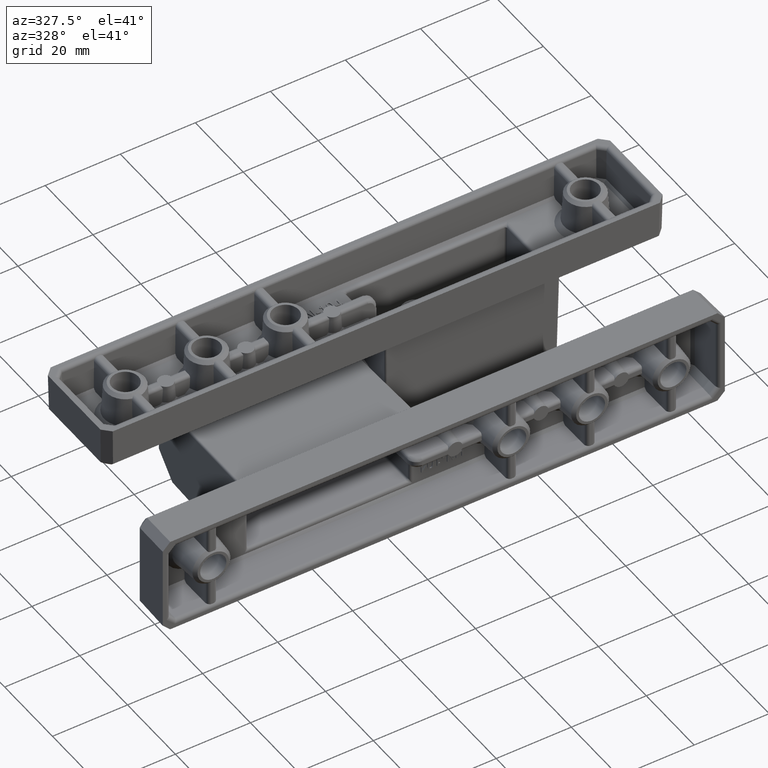
[diagram: clean part render]
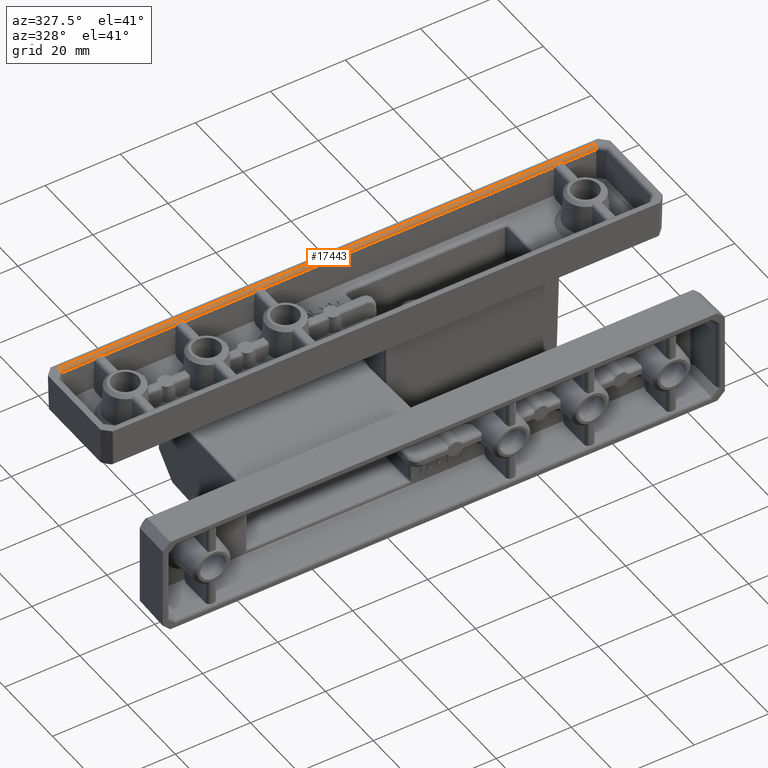
[diagram: same view with one face highlighted and labeled with its STEP entity id]
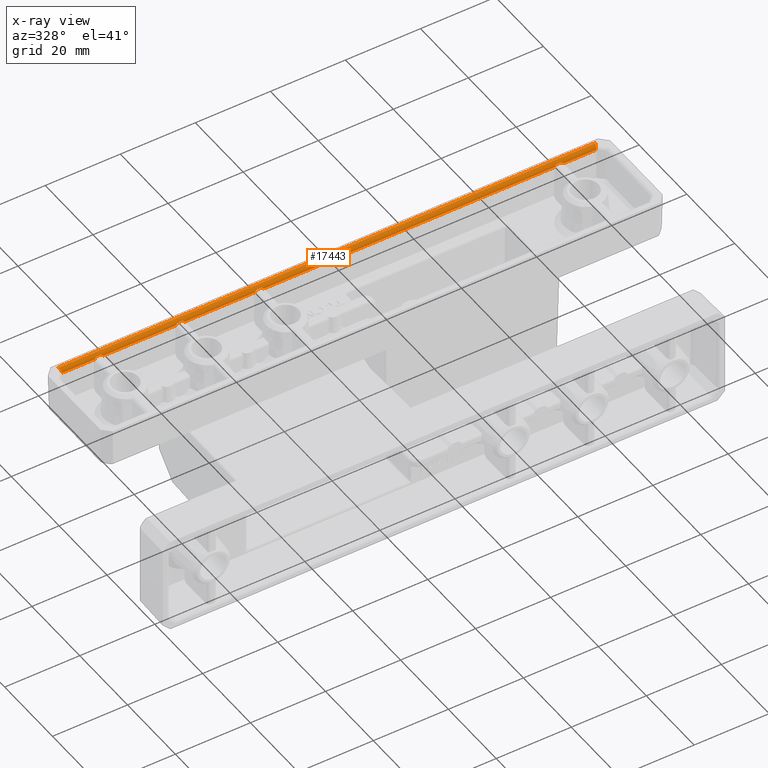
[diagram: x-ray of the same camera — body ghosted, the highlighted face saturated]
A machine part, auxiliary view. The second image highlights one B-rep face of the part: STEP entity #17443.
The next image is the same camera in x-ray: the body ghosted, the highlighted face saturated — about 0% of this face is hidden behind the body in this view.
In plain terms, the highlighted cylindrical surface (edge-blend (fillet) strip) has radius 1 mm, axis along (1, -0, 0).
Its self-contained STEP definition (entity closure, byte-faithful):
#401=ELLIPSE('',#18356,1.08239220029239,1.);
#407=ELLIPSE('',#18377,1.08239220029239,1.);
#988=LINE('',#25595,#2386);
#990=LINE('',#25612,#2388);
#1028=LINE('',#25742,#2426);
#1040=LINE('',#25822,#2438);
#1042=LINE('',#25830,#2440);
#1043=LINE('',#25841,#2441);
#1044=LINE('',#25852,#2442);
#1045=LINE('',#25863,#2443);
#1046=LINE('',#25874,#2444);
#1047=LINE('',#25885,#2445);
#2386=VECTOR('',#20158,8.71718570116231);
#2388=VECTOR('',#20166,0.641455298548195);
#2426=VECTOR('',#20256,143.211255777855);
#2438=VECTOR('',#20276,77.5513610614597);
#2440=VECTOR('',#20284,8.717185701165);
#2441=VECTOR('',#20285,0.641455298545992);
#2442=VECTOR('',#20286,19.35136106146);
#2443=VECTOR('',#20287,0.641455298547008);
#2444=VECTOR('',#20288,18.6513610614595);
#2445=VECTOR('',#20289,0.641455298547697);
#3533=B_SPLINE_CURVE_WITH_KNOTS('',3,(#25599,#25600,#25601,#25602,#25603,
#25604,#25605,#25606,#25607,#25608),.UNSPECIFIED.,.F.,.F.,(4,2,2,2,4),(0.764332314445774,
0.790475346023868,0.816618377601962,0.842761409180056,0.866469034899585),
 .UNSPECIFIED.);
#3535=B_SPLINE_CURVE_WITH_KNOTS('',3,(#25672,#25673,#25674,#25675,#25676,
#25677,#25678,#25679,#25680,#25681),.UNSPECIFIED.,.F.,.F.,(4,2,2,2,4),(0.155449449140797,
0.178134458193319,0.203237887448036,0.228301233522717,0.253364579597398),
 .UNSPECIFIED.);
#3543=B_SPLINE_CURVE_WITH_KNOTS('',3,(#25832,#25833,#25834,#25835,#25836,
#25837,#25838,#25839),.UNSPECIFIED.,.F.,.F.,(4,2,2,4),(-0.0984011371208207,
-0.0701003423844554,-0.0350501711922277,0.),.UNSPECIFIED.);
#3544=B_SPLINE_CURVE_WITH_KNOTS('',3,(#25843,#25844,#25845,#25846,#25847,
#25848,#25849,#25850),.UNSPECIFIED.,.F.,.F.,(4,2,2,4),(-1.02193546969693,
-0.986885298504637,-0.951835127312345,-0.923534332578013),.UNSPECIFIED.);
#3545=B_SPLINE_CURVE_WITH_KNOTS('',3,(#25854,#25855,#25856,#25857,#25858,
#25859,#25860,#25861),.UNSPECIFIED.,.F.,.F.,(4,2,2,4),(-0.0984011371224013,
-0.0701003423844554,-0.0350501711922277,0.),.UNSPECIFIED.);
#3546=B_SPLINE_CURVE_WITH_KNOTS('',3,(#25865,#25866,#25867,#25868,#25869,
#25870,#25871,#25872),.UNSPECIFIED.,.F.,.F.,(4,2,2,4),(-1.02193546969681,
-0.986885298504562,-0.951835127312313,-0.923534332578006),.UNSPECIFIED.);
#3547=B_SPLINE_CURVE_WITH_KNOTS('',3,(#25876,#25877,#25878,#25879,#25880,
#25881,#25882,#25883),.UNSPECIFIED.,.F.,.F.,(4,2,2,4),(-0.0984011371207961,
-0.0701003423844554,-0.0350501711922277,0.),.UNSPECIFIED.);
#3548=B_SPLINE_CURVE_WITH_KNOTS('',3,(#25886,#25887,#25888,#25889,#25890,
#25891,#25892,#25893),.UNSPECIFIED.,.F.,.F.,(4,2,2,4),(-1.03041262100396,
-0.995362449811717,-0.960312278619471,-0.932011483885176),.UNSPECIFIED.);
#4370=CYLINDRICAL_SURFACE('',#18376,1.);
#4885=FACE_OUTER_BOUND('',#5852,.T.);
#5852=EDGE_LOOP('',(#12349,#12350,#12351,#12352,#12353,#12354,#12355,#12356,
#12357,#12358,#12359,#12360,#12361,#12362,#12363,#12364,#12365,#12366,#12367,
#12368));
#7300=VERTEX_POINT('',#25499);
#7317=VERTEX_POINT('',#25594);
#7318=VERTEX_POINT('',#25598);
#7319=VERTEX_POINT('',#25611);
#7328=VERTEX_POINT('',#25652);
#7334=VERTEX_POINT('',#25669);
#7349=VERTEX_POINT('',#25740);
#7365=VERTEX_POINT('',#25821);
#7367=VERTEX_POINT('',#25827);
#7368=VERTEX_POINT('',#25829);
#7369=VERTEX_POINT('',#25831);
#7370=VERTEX_POINT('',#25840);
#7371=VERTEX_POINT('',#25842);
#7372=VERTEX_POINT('',#25851);
#7373=VERTEX_POINT('',#25853);
#7374=VERTEX_POINT('',#25862);
#7375=VERTEX_POINT('',#25864);
#7376=VERTEX_POINT('',#25873);
#7377=VERTEX_POINT('',#25875);
#7378=VERTEX_POINT('',#25884);
#9180=EDGE_CURVE('',#7300,#7317,#988,.T.);
#9182=EDGE_CURVE('',#7318,#7317,#3533,.T.);
#9184=EDGE_CURVE('',#7318,#7319,#990,.T.);
#9201=EDGE_CURVE('',#7300,#7328,#401,.T.);
#9210=EDGE_CURVE('',#7334,#7319,#3535,.T.);
#9235=EDGE_CURVE('',#7349,#7328,#1028,.T.);
#9254=EDGE_CURVE('',#7334,#7365,#1040,.T.);
#9257=EDGE_CURVE('',#7367,#7349,#407,.T.);
#9258=EDGE_CURVE('',#7368,#7367,#1042,.T.);
#9259=EDGE_CURVE('',#7368,#7369,#3543,.T.);
#9260=EDGE_CURVE('',#7370,#7369,#1043,.T.);
#9261=EDGE_CURVE('',#7370,#7371,#3544,.T.);
#9262=EDGE_CURVE('',#7372,#7371,#1044,.T.);
#9263=EDGE_CURVE('',#7372,#7373,#3545,.T.);
#9264=EDGE_CURVE('',#7373,#7374,#1045,.T.);
#9265=EDGE_CURVE('',#7374,#7375,#3546,.T.);
#9266=EDGE_CURVE('',#7376,#7375,#1046,.T.);
#9267=EDGE_CURVE('',#7376,#7377,#3547,.T.);
#9268=EDGE_CURVE('',#7378,#7377,#1047,.T.);
#9269=EDGE_CURVE('',#7378,#7365,#3548,.T.);
#12349=ORIENTED_EDGE('',*,*,#9235,.F.);
#12350=ORIENTED_EDGE('',*,*,#9257,.F.);
#12351=ORIENTED_EDGE('',*,*,#9258,.F.);
#12352=ORIENTED_EDGE('',*,*,#9259,.T.);
#12353=ORIENTED_EDGE('',*,*,#9260,.F.);
#12354=ORIENTED_EDGE('',*,*,#9261,.T.);
#12355=ORIENTED_EDGE('',*,*,#9262,.F.);
#12356=ORIENTED_EDGE('',*,*,#9263,.T.);
#12357=ORIENTED_EDGE('',*,*,#9264,.T.);
#12358=ORIENTED_EDGE('',*,*,#9265,.T.);
#12359=ORIENTED_EDGE('',*,*,#9266,.F.);
#12360=ORIENTED_EDGE('',*,*,#9267,.T.);
#12361=ORIENTED_EDGE('',*,*,#9268,.F.);
#12362=ORIENTED_EDGE('',*,*,#9269,.T.);
#12363=ORIENTED_EDGE('',*,*,#9254,.F.);
#12364=ORIENTED_EDGE('',*,*,#9210,.T.);
#12365=ORIENTED_EDGE('',*,*,#9184,.F.);
#12366=ORIENTED_EDGE('',*,*,#9182,.T.);
#12367=ORIENTED_EDGE('',*,*,#9180,.F.);
#12368=ORIENTED_EDGE('',*,*,#9201,.T.);
#17443=ADVANCED_FACE('',(#4885),#4370,.T.);
#18356=AXIS2_PLACEMENT_3D('',#25654,#20200,#20201);
#18376=AXIS2_PLACEMENT_3D('',#25826,#20280,#20281);
#18377=AXIS2_PLACEMENT_3D('',#25828,#20282,#20283);
#20158=DIRECTION('',(-1.,7.97924070761804E-16,4.45187574402755E-37));
#20166=DIRECTION('',(-1.,7.97924070761804E-16,0.));
#20200=DIRECTION('center_axis',(-0.923879532511287,0.38268343236509,0.));
#20201=DIRECTION('ref_axis',(0.38268343236509,0.923879532511287,0.));
#20256=DIRECTION('',(1.,-7.97924070761804E-16,0.));
#20276=DIRECTION('',(-1.,7.97924070761804E-16,4.45187574402755E-37));
#20280=DIRECTION('center_axis',(1.,-7.97924070761804E-16,0.));
#20281=DIRECTION('ref_axis',(7.97924070761804E-16,1.,0.));
#20282=DIRECTION('center_axis',(-0.923879532511286,-0.382683432365091,0.));
#20283=DIRECTION('ref_axis',(-0.382683432365091,0.923879532511286,0.));
#20284=DIRECTION('',(-1.,7.97924070761804E-16,4.45187574402755E-37));
#20285=DIRECTION('',(-1.,7.97924070761804E-16,0.));
#20286=DIRECTION('',(-1.,7.97924070761804E-16,4.45187574402755E-37));
#20287=DIRECTION('',(1.,-7.97924070761804E-16,0.));
#20288=DIRECTION('',(-1.,7.97924070761804E-16,4.45187574402755E-37));
#20289=DIRECTION('',(-1.,7.97924070761804E-16,0.));
#25499=CARTESIAN_POINT('',(-1.70849482956649,-2.02050833274895,-0.979057580116643));
#25594=CARTESIAN_POINT('',(-10.4256805307288,-2.02050833274894,-0.979057580116643));
#25595=CARTESIAN_POINT('',(-72.9000000000001,-2.02050833274889,-0.979057580116643));
#25598=CARTESIAN_POINT('',(-11.279272350726,-1.88675305305853,-0.5));
#25599=CARTESIAN_POINT('Ctrl Pts',(-11.279272350726,-1.88675305305853,-0.5));
#25600=CARTESIAN_POINT('Ctrl Pts',(-11.1921289121324,-1.88675305305853,
-0.500000000000001));
#25601=CARTESIAN_POINT('Ctrl Pts',(-11.1046193338395,-1.89368383264875,
-0.511504485139867));
#25602=CARTESIAN_POINT('Ctrl Pts',(-10.9357460735027,-1.91749570637129,
-0.556788950900922));
#25603=CARTESIAN_POINT('Ctrl Pts',(-10.8543688204824,-1.93427382591403,
-0.590572410483404));
#25604=CARTESIAN_POINT('Ctrl Pts',(-10.7033941456679,-1.96856873919858,
-0.677828352310977));
#25605=CARTESIAN_POINT('Ctrl Pts',(-10.633642837835,-1.98604383784631,-0.731384181546958));
#25606=CARTESIAN_POINT('Ctrl Pts',(-10.5160970832245,-2.01090428250437,
-0.848990589089613));
#25607=CARTESIAN_POINT('Ctrl Pts',(-10.4668542248484,-2.01909513649875,
-0.911592295743318));
#25608=CARTESIAN_POINT('Ctrl Pts',(-10.4256805307288,-2.02050833274894,
-0.97905758011666));
#25611=CARTESIAN_POINT('',(-11.9207276492742,-1.88675305305853,-0.5));
#25612=CARTESIAN_POINT('',(-72.9000000000001,-1.88675305305848,-0.5));
#25652=CARTESIAN_POINT('',(-1.29437211107256,-1.0207276492741,0.));
#25654=CARTESIAN_POINT('Origin',(-1.29437211107255,-1.02072764927411,-1.));
#25669=CARTESIAN_POINT('',(-12.7743194692693,-2.02050833274888,-0.979057580143048));
#25672=CARTESIAN_POINT('Ctrl Pts',(-12.7743194692825,-2.02050833274932,
-0.979057580134959));
#25673=CARTESIAN_POINT('Ctrl Pts',(-12.7343793503163,-2.019137476247,-0.913613574157217));
#25674=CARTESIAN_POINT('Ctrl Pts',(-12.6841218300923,-2.01098523146841,
-0.849039104469109));
#25675=CARTESIAN_POINT('Ctrl Pts',(-12.5636850443884,-1.98543952031087,
-0.728902756091974));
#25676=CARTESIAN_POINT('Ctrl Pts',(-12.4918330456697,-1.96747935972335,
-0.675027315965362));
#25677=CARTESIAN_POINT('Ctrl Pts',(-12.3497357883792,-1.93521143905039,
-0.592987426217546));
#25678=CARTESIAN_POINT('Ctrl Pts',(-12.2671540195595,-1.91796503195252,
-0.557670236125325));
#25679=CARTESIAN_POINT('Ctrl Pts',(-12.0944618088979,-1.89349449805698,
-0.511155762619152));
#25680=CARTESIAN_POINT('Ctrl Pts',(-12.0042721361898,-1.88675305305853,
-0.5));
#25681=CARTESIAN_POINT('Ctrl Pts',(-11.9207276492742,-1.88675305305853,
-0.5));
#25740=CARTESIAN_POINT('',(-144.505627888928,-1.02072764927399,0.));
#25742=CARTESIAN_POINT('',(-147.8,-1.02072764927398,0.));
#25821=CARTESIAN_POINT('',(-90.325680530729,-2.02050833274888,-0.979057580116646));
#25822=CARTESIAN_POINT('',(-72.9000000000001,-2.02050833274889,-0.979057580116643));
#25826=CARTESIAN_POINT('Origin',(-72.9000000000001,-1.02072764927404,-1.));
#25827=CARTESIAN_POINT('',(-144.091505170434,-2.02050833274883,-0.979057580116643));
#25828=CARTESIAN_POINT('Origin',(-144.505627888928,-1.02072764927398,-1.));
#25829=CARTESIAN_POINT('',(-135.374319469269,-2.02050833274879,-0.979057580143406));
#25830=CARTESIAN_POINT('',(-72.9000000000001,-2.02050833274889,-0.979057580116643));
#25831=CARTESIAN_POINT('',(-134.520727649274,-1.88675305305843,-0.5));
#25832=CARTESIAN_POINT('Ctrl Pts',(-135.374319469282,-2.02050833274922,
-0.979057580135172));
#25833=CARTESIAN_POINT('Ctrl Pts',(-135.32319276941,-2.01875352152742,-0.895283767269708));
#25834=CARTESIAN_POINT('Ctrl Pts',(-135.252026855456,-2.00487941184318,
-0.811633320861559));
#25835=CARTESIAN_POINT('Ctrl Pts',(-135.095932215721,-1.96934004047192,
-0.673922981878148));
#25836=CARTESIAN_POINT('Ctrl Pts',(-134.990283751194,-1.94223133422121,
-0.608638936145349));
#25837=CARTESIAN_POINT('Ctrl Pts',(-134.761236977708,-1.9002260251251,-0.521653310054808));
#25838=CARTESIAN_POINT('Ctrl Pts',(-134.637561553248,-1.88675305305843,
-0.5));
#25839=CARTESIAN_POINT('Ctrl Pts',(-134.520727649274,-1.88675305305843,
-0.5));
#25840=CARTESIAN_POINT('',(-133.879272350728,-1.88675305305843,-0.5));
#25841=CARTESIAN_POINT('',(-72.9000000000001,-1.88675305305848,-0.5));
#25842=CARTESIAN_POINT('',(-133.025680530729,-2.02050833274884,-0.979057580116643));
#25843=CARTESIAN_POINT('Ctrl Pts',(-133.879272350726,-1.88675305305843,
-0.5));
#25844=CARTESIAN_POINT('Ctrl Pts',(-133.762438446752,-1.88675305305843,
-0.499999999999999));
#25845=CARTESIAN_POINT('Ctrl Pts',(-133.638763022292,-1.9002260251251,-0.521653310054802));
#25846=CARTESIAN_POINT('Ctrl Pts',(-133.409716248806,-1.94223133422121,
-0.608638936145349));
#25847=CARTESIAN_POINT('Ctrl Pts',(-133.304067784279,-1.96934004047192,
-0.673922981878145));
#25848=CARTESIAN_POINT('Ctrl Pts',(-133.147973144549,-2.00487941184201,
-0.811633320857027));
#25849=CARTESIAN_POINT('Ctrl Pts',(-133.076807230601,-2.01875352152561,
-0.895283767257147));
#25850=CARTESIAN_POINT('Ctrl Pts',(-133.025680530729,-2.02050833274884,
-0.979057580116669));
#25851=CARTESIAN_POINT('',(-113.674319469269,-2.02050833274921,-0.979057580162697));
#25852=CARTESIAN_POINT('',(-72.9000000000001,-2.02050833274889,-0.979057580116643));
#25853=CARTESIAN_POINT('',(-112.820727649274,-1.88675305305845,-0.5));
#25854=CARTESIAN_POINT('Ctrl Pts',(-113.674319469291,-2.02050833274954,
-0.979057580149222));
#25855=CARTESIAN_POINT('Ctrl Pts',(-113.623192769417,-2.01875352152881,
-0.895283767279243));
#25856=CARTESIAN_POINT('Ctrl Pts',(-113.55202685546,-2.00487941184408,-0.811633320864995));
#25857=CARTESIAN_POINT('Ctrl Pts',(-113.395932215721,-1.96934004047193,
-0.673922981878148));
#25858=CARTESIAN_POINT('Ctrl Pts',(-113.290283751194,-1.94223133422122,
-0.608638936145352));
#25859=CARTESIAN_POINT('Ctrl Pts',(-113.061236977708,-1.90022602512512,
-0.521653310054806));
#25860=CARTESIAN_POINT('Ctrl Pts',(-112.937561553248,-1.88675305305845,
-0.5));
#25861=CARTESIAN_POINT('Ctrl Pts',(-112.820727649274,-1.88675305305845,
-0.5));
#25862=CARTESIAN_POINT('',(-112.179272350727,-1.88675305305845,-0.5));
#25863=CARTESIAN_POINT('',(-72.9000000000001,-1.88675305305848,-0.5));
#25864=CARTESIAN_POINT('',(-111.325680530729,-2.02050833274886,-0.979057580116641));
#25865=CARTESIAN_POINT('Ctrl Pts',(-112.179272350726,-1.88675305305845,
-0.5));
#25866=CARTESIAN_POINT('Ctrl Pts',(-112.062438446752,-1.88675305305845,
-0.5));
#25867=CARTESIAN_POINT('Ctrl Pts',(-111.938763022292,-1.90022602512512,
-0.521653310054808));
#25868=CARTESIAN_POINT('Ctrl Pts',(-111.709716248806,-1.94223133422122,
-0.608638936145348));
#25869=CARTESIAN_POINT('Ctrl Pts',(-111.604067784279,-1.96934004047193,
-0.673922981878148));
#25870=CARTESIAN_POINT('Ctrl Pts',(-111.447973144549,-2.00487941184203,
-0.811633320857045));
#25871=CARTESIAN_POINT('Ctrl Pts',(-111.376807230601,-2.01875352152563,
-0.895283767257195));
#25872=CARTESIAN_POINT('Ctrl Pts',(-111.325680530729,-2.02050833274886,
-0.979057580116729));
#25873=CARTESIAN_POINT('',(-92.6743194692695,-2.02050833274882,-0.979057580143046));
#25874=CARTESIAN_POINT('',(-72.9000000000001,-2.02050833274889,-0.979057580116643));
#25875=CARTESIAN_POINT('',(-91.8207276492744,-1.88675305305847,-0.5));
#25876=CARTESIAN_POINT('Ctrl Pts',(-92.6743194692828,-2.02050833274925,
-0.979057580134953));
#25877=CARTESIAN_POINT('Ctrl Pts',(-92.62319276941,-2.01875352152743,-0.895283767269553));
#25878=CARTESIAN_POINT('Ctrl Pts',(-92.5520268554564,-2.0048794118432,-0.811633320861506));
#25879=CARTESIAN_POINT('Ctrl Pts',(-92.3959322157218,-1.96934004047195,
-0.673922981878148));
#25880=CARTESIAN_POINT('Ctrl Pts',(-92.2902837511947,-1.94223133422124,
-0.608638936145349));
#25881=CARTESIAN_POINT('Ctrl Pts',(-92.0612369777088,-1.90022602512513,
-0.521653310054808));
#25882=CARTESIAN_POINT('Ctrl Pts',(-91.9375615532485,-1.88675305305846,
-0.5));
#25883=CARTESIAN_POINT('Ctrl Pts',(-91.8207276492744,-1.88675305305846,
-0.5));
#25884=CARTESIAN_POINT('',(-91.1792723507267,-1.88675305305847,-0.5));
#25885=CARTESIAN_POINT('',(-72.9000000000001,-1.88675305305848,-0.5));
#25886=CARTESIAN_POINT('Ctrl Pts',(-91.1792723507262,-1.88675305305846,
-0.499999999999998));
#25887=CARTESIAN_POINT('Ctrl Pts',(-91.0624384467521,-1.88675305305846,
-0.499999999999999));
#25888=CARTESIAN_POINT('Ctrl Pts',(-90.9387630222917,-1.90022602512513,
-0.521653310054806));
#25889=CARTESIAN_POINT('Ctrl Pts',(-90.7097162488059,-1.94223133422124,
-0.608638936145352));
#25890=CARTESIAN_POINT('Ctrl Pts',(-90.6040677842788,-1.96934004047195,
-0.673922981878145));
#25891=CARTESIAN_POINT('Ctrl Pts',(-90.4479731445493,-2.00487941184204,
-0.811633320857024));
#25892=CARTESIAN_POINT('Ctrl Pts',(-90.3768072306007,-2.01875352152564,
-0.895283767257151));
#25893=CARTESIAN_POINT('Ctrl Pts',(-90.325680530729,-2.02050833274887,-0.979057580116657));